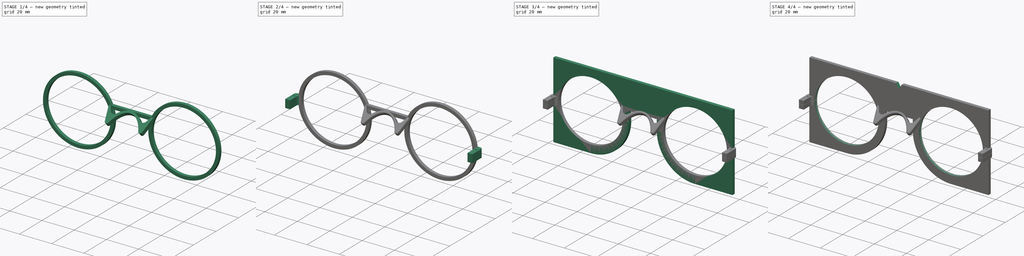
[diagram: build sequence overview — one tinted view per stage of 4, left to right]
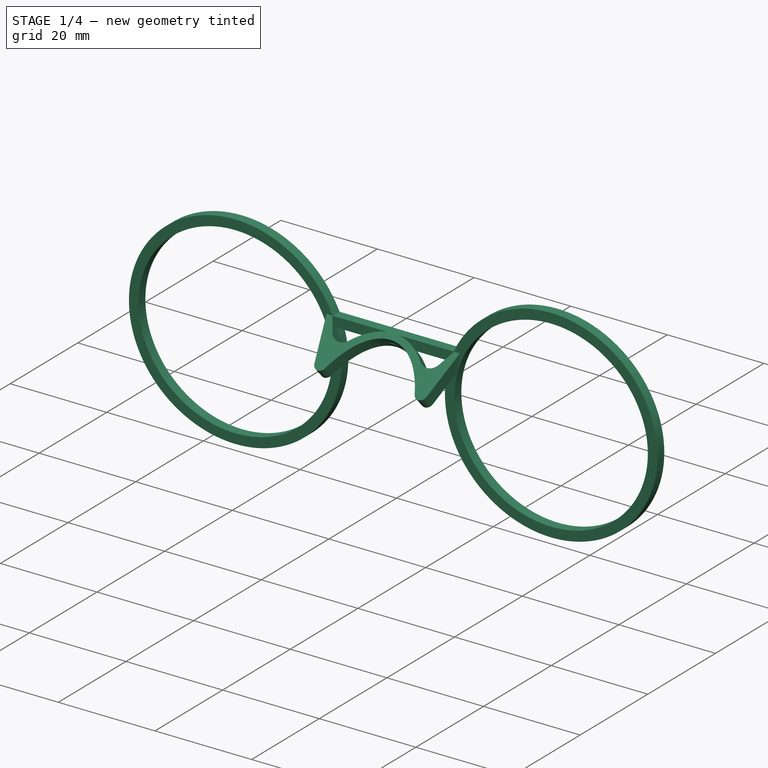
[diagram: stage 1 of 4 — iso view after this stage's code; geometry added in this stage tinted green]
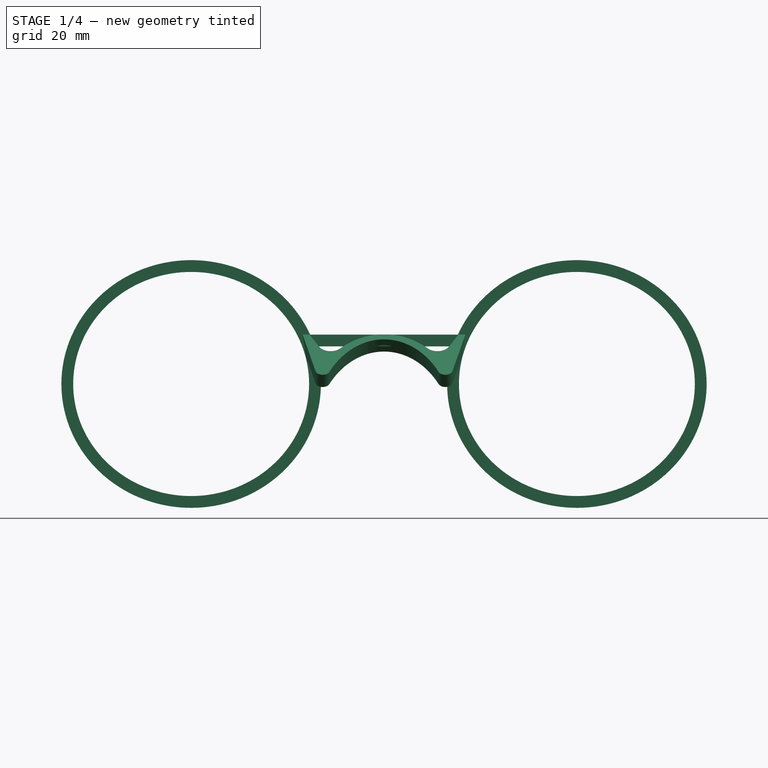
[diagram: stage 1 of 4 — front view after this stage's code; geometry added in this stage tinted green]
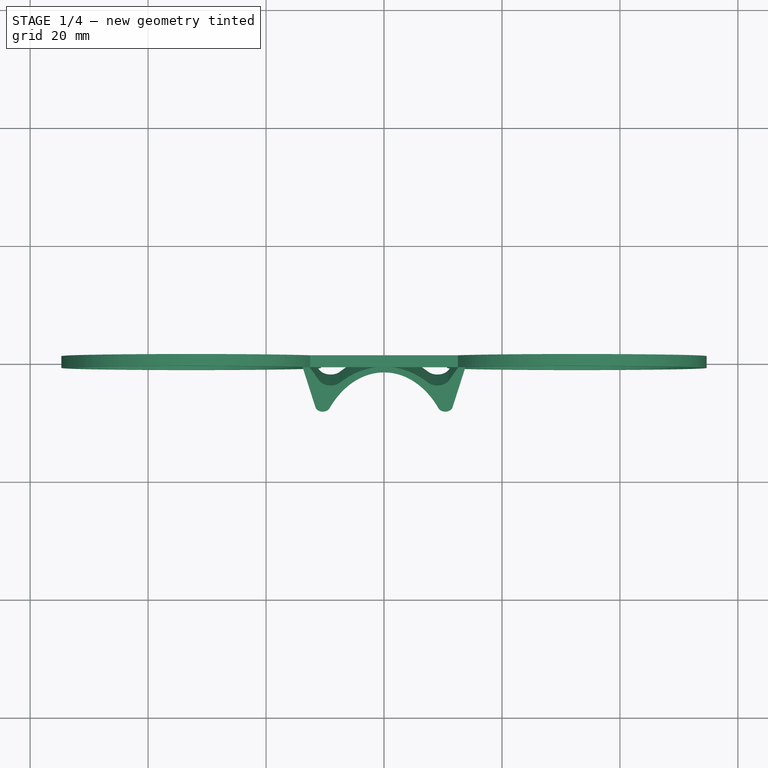
[diagram: stage 1 of 4 — top view after this stage's code; geometry added in this stage tinted green]
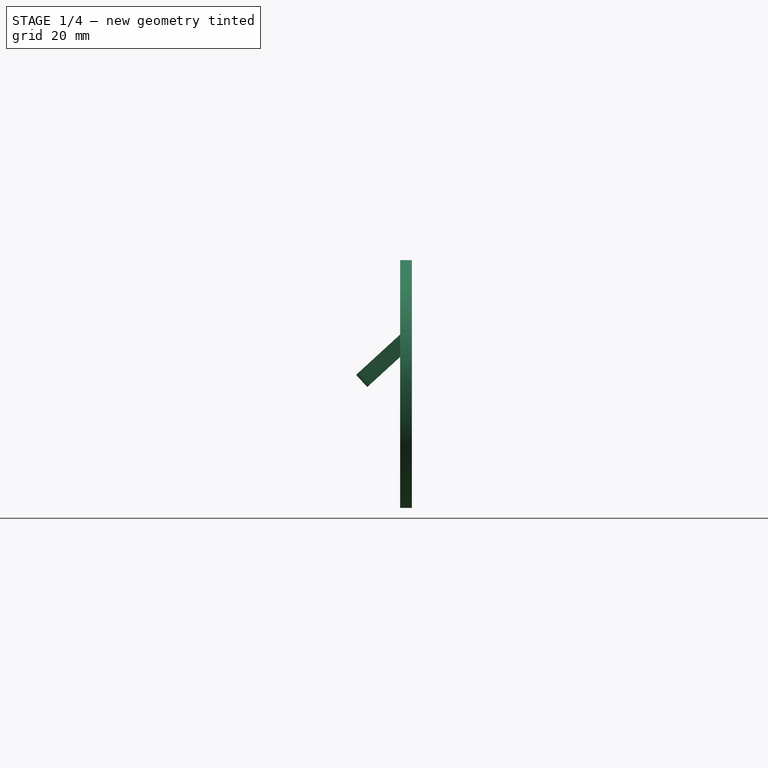
[diagram: stage 1 of 4 — right view after this stage's code; geometry added in this stage tinted green]
FCSTD DOCUMENT  (FreeCAD 1.1R39029 (Git))
Label: template_for_lens_edging_machine
License: All rights reserved
LicenseURL: http://en.wikipedia.org/wiki/All_rights_reserved
objects: Sketcher::SketchObject×14, PartDesign::Pad×5, PartDesign::Pocket×4, PartDesign::Plane×3, PartDesign::SubtractivePipe×2, PartDesign::Fillet×1, PartDesign::Body×1
note: 68 computed .brp shape members not serialized (recipe doc carries the construction recipe); baked Part::Feature solids carry a one-line shape summary decoded from their .brp

FEATURE [Sketcher::SketchObject] Sketch
  ArcFitTolerance = 1e-06
  AttachmentSupport = -> [XZ_Plane]
  FullyConstrained = true
  MakeInternals = false
  MapMode = 5
  Placement = pos=(0,0,0) rot=(1,0,0;1.5708rad)
  sketch-geometry (22):
    g0: Ellipse CenterX=-32.7 CenterY=0 CenterZ=0 NormalX=0 NormalY=0 NormalZ=1 MajorRadius=20 MinorRadius=19 AngleXU=-2.2e-15
    g1: LineSegment [constr] StartX=-12.7 StartY=0 StartZ=0 EndX=-52.7 EndY=0 EndZ=0
    g2: LineSegment [constr] StartX=-32.7 StartY=19 StartZ=0 EndX=-32.7 EndY=-19 EndZ=0
    g3: GeomPoint [constr] X=-26.455 Y=-1.37e-14 Z=0
    g4: GeomPoint [constr] X=-38.945 Y=1.39e-14 Z=0
    g5: Ellipse CenterX=32.7 CenterY=0 CenterZ=0 NormalX=0 NormalY=0 NormalZ=1 MajorRadius=20 MinorRadius=19 AngleXU=0
    g6: LineSegment [constr] StartX=52.7 StartY=0 StartZ=0 EndX=12.7 EndY=0 EndZ=0
    g7: LineSegment [constr] StartX=32.7 StartY=19 StartZ=0 EndX=32.7 EndY=-19 EndZ=0
    g8: GeomPoint [constr] X=38.945 Y=0 Z=0
    g9: GeomPoint [constr] X=26.455 Y=0 Z=0
    g10: ArcOfEllipse CenterX=-32.7 CenterY=0 CenterZ=0 NormalX=0 NormalY=0 NormalZ=1 MajorRadius=22 MinorRadius=21 AngleXU=-4.6e-15 StartAngle=0.410218 EndAngle=6.59162
    g11: LineSegment [constr] StartX=-10.7 StartY=0 StartZ=0 EndX=-54.7 EndY=0 EndZ=0
    g12: LineSegment [constr] StartX=-32.7 StartY=21 StartZ=0 EndX=-32.7 EndY=-21 EndZ=0
    g13: GeomPoint [constr] X=-26.1426 Y=-3.02e-14 Z=0
    g14: GeomPoint [constr] X=-39.2574 Y=3e-14 Z=0
    g15: ArcOfEllipse CenterX=32.7 CenterY=0 CenterZ=0 NormalX=0 NormalY=0 NormalZ=1 MajorRadius=22 MinorRadius=21 AngleXU=0 StartAngle=2.83315 EndAngle=9.01456
    g16: LineSegment [constr] StartX=54.7 StartY=0 StartZ=0 EndX=10.7 EndY=0 EndZ=0
    g17: LineSegment [constr] StartX=32.7 StartY=21 StartZ=0 EndX=32.7 EndY=-21 EndZ=0
    g18: GeomPoint [constr] X=39.2574 Y=0 Z=0
    g19: GeomPoint [constr] X=26.1426 Y=-3e-16 Z=0
    g20: LineSegment StartX=-11.7382 StartY=6.375 StartZ=0 EndX=11.7382 EndY=6.375 EndZ=0
    g21: LineSegment StartX=-12.5253 StartY=8.375 StartZ=0 EndX=12.5253 EndY=8.375 EndZ=0
  constraints (29):
    c: InternalAlignment(g1-g4 -> g0) x4
    c: PointOnObject(g0,g-1)
    c: Horizontal(g1)
    c: DistanceX(g1,g1) = 40
    c: DistanceY(g2,g2) = 38
    c: InternalAlignment(g6-g9 -> g5) x4
    c: Horizontal(g6)
    c: Equal(g1,g6)
    c: Equal(g7,g2)
    c: Symmetric(g5,g0,g-2)
    c: DistanceX(g0,g5) = 65.4
    c: InternalAlignment(g11-g14 -> g10) x4
    c: Coincident(g10,g0)
    c: Horizontal(g11)
    c: DistanceX(g1,g11) = 2
    c: DistanceY(g12,g2) = 2
    c: InternalAlignment(g16-g19 -> g15) x4
    c: Symmetric(g0,g15,g-2)
    c: Horizontal(g16)
    c: Equal(g16,g11)
    c: Equal(g17,g12)
    c: Horizontal(g10,g15)
    c: Horizontal(g15,g10)
    c: Coincident(g20,g10)
    c: Coincident(g20,g15)
    c: Coincident(g21,g10)
    c: Coincident(g21,g15)
    c: Distance(g20,g21) = 2
    c: Distance(g-1,g20) = 6.375
FEATURE [PartDesign::Pad] Pad  label="Lenses holder"
  Direction = (0,-1,2e-16)
  Length = 2
  Length2 = 10
  Midplane = true
  Placement = pos=(0,0,0) rot=(1,0,0;1.5708rad)
  Profile = -> Sketch
  ReferenceAxis = -> Sketch [N_Axis]
  Suppressed = false
  Type = 0
FEATURE [Sketcher::SketchObject] Sketch001  label="Nose bridge profile #1"
  ArcFitTolerance = 1e-06
  AttachmentSupport = -> [YZ_Plane]
  FullyConstrained = true
  MakeInternals = false
  MapMode = 5
  Placement = pos=(0,0,0) rot=(0.57735,0.57735,0.57735;2.0944rad)
  sketch-geometry (1):
    g0: LineSegment StartX=-6 StartY=0 StartZ=0 EndX=0 EndY=5.5 EndZ=0
  constraints (4):
    c: PointOnObject(g0,g-1)
    c: Distance(g0,g-1) = 5.5
    c: PointOnObject(g0,g-2)
    c: DistanceX(g0,g-1) = 6
FEATURE [Sketcher::SketchObject] Sketch002  label="Nose bridge profile #2"
  ArcFitTolerance = 1e-06
  AttachmentSupport = -> [XY_Plane]
  ExternalGeometry = -> [Sketch001]
  FullyConstrained = true
  MakeInternals = false
  MapMode = 5
  sketch-geometry (1):
    g0: LineSegment StartX=-9.25 StartY=-6 StartZ=0 EndX=9.25 EndY=-6 EndZ=0
  constraints (3):
    c: Symmetric(g0,g0,g-2)
    c: PointOnObject(g-3,g0)
    c: DistanceX(g0,g0) = 18.5
FEATURE [PartDesign::Plane] DatumPlane  label="Nose bridge plane"
  AttachmentSupport = -> [Sketch001,Sketch002]
  Length = 133.458
  MapMode = 13
  Placement = pos=(0,-4,1.83333) rot=(1,0,0;0.741947rad)
  ResizeMode = 0
  Width = 88.702
FEATURE [Sketcher::SketchObject] Sketch003
  ArcFitTolerance = 1e-06
  AttachmentSupport = -> [DatumPlane]
  ExternalGeometry = -> [Sketch001,Sketch002,Pad]
  FullyConstrained = true
  MakeInternals = false
  MapMode = 5
  Placement = pos=(0,-4,1.83333) rot=(1,0,0;0.741947rad)
  sketch-geometry (21):
    g0: ArcOfEllipse CenterX=0 CenterY=-15.7131 CenterZ=0 NormalX=0 NormalY=0 NormalZ=1 MajorRadius=21.1394 MinorRadius=11.7303 AngleXU=1.5708 StartAngle=5.37473 EndAngle=7.19164
    g1: LineSegment [constr] StartX=0 StartY=5.42627 StartZ=0 EndX=0 EndY=-36.8525 EndZ=0
    g2: LineSegment [constr] StartX=-11.7303 StartY=-15.7131 StartZ=0 EndX=11.7303 EndY=-15.7131 EndZ=0
    g3: GeomPoint [constr] X=2e-15 Y=1.87305 Z=0
    g4: GeomPoint [constr] X=0 Y=-33.2993 Z=0
    g5: ArcOfEllipse CenterX=0 CenterY=-15.7131 CenterZ=0 NormalX=0 NormalY=0 NormalZ=1 MajorRadius=22.4394 MinorRadius=13.7303 AngleXU=1.5708 StartAngle=5.71213 EndAngle=6.85424
    g6: LineSegment [constr] StartX=-5e-16 StartY=6.72627 StartZ=0 EndX=5e-16 EndY=-38.1525 EndZ=0
    g7: LineSegment [constr] StartX=-13.7303 StartY=-15.7131 StartZ=0 EndX=13.7303 EndY=-15.7131 EndZ=0
    g8: GeomPoint [constr] X=2e-15 Y=2.03525 Z=0
    g9: GeomPoint [constr] X=4e-16 Y=-33.4615 Z=0
    g10: ArcOfCircle CenterX=-10.3972 CenterY=-2.21669 CenterZ=0 NormalX=0 NormalY=0 NormalZ=1 AngleXU=0 Radius=1.25 StartAngle=3.37719 EndAngle=5.87477
    g11: LineSegment StartX=-13.82 StartY=6.68686 StartZ=0 EndX=-11.6127 EndY=-2.50847 EndZ=0
    g12: GeomPoint [constr] X=-9.25 Y=-2.71314 Z=0
    g13: LineSegment StartX=11.6127 StartY=-2.50847 StartZ=0 EndX=13.82 EndY=6.68686 EndZ=0
    g14: ArcOfCircle CenterX=10.3972 CenterY=-2.21669 CenterZ=0 NormalX=0 NormalY=0 NormalZ=1 AngleXU=0 Radius=1.25 StartAngle=3.55001 EndAngle=6.04759
    g15: ArcOfCircle CenterX=-9.05082 CenterY=4.71757 CenterZ=0 NormalX=0 NormalY=0 NormalZ=1 AngleXU=0 Radius=2.25 StartAngle=3.63126 EndAngle=5.52216
    g16: LineSegment StartX=-11.0364 StartY=3.65931 StartZ=0 EndX=-12.65 EndY=6.68686 EndZ=0
    g17: ArcOfCircle CenterX=9.05082 CenterY=4.71757 CenterZ=0 NormalX=0 NormalY=0 NormalZ=1 AngleXU=0 Radius=2.25 StartAngle=3.90262 EndAngle=5.79351
    g18: LineSegment StartX=11.0364 StartY=3.65931 StartZ=0 EndX=12.65 EndY=6.68686 EndZ=0
    g19: LineSegment StartX=-13.82 StartY=6.68686 StartZ=0 EndX=-12.65 EndY=6.68686 EndZ=0
    g20: LineSegment StartX=12.65 StartY=6.68686 StartZ=0 EndX=13.82 EndY=6.68686 EndZ=0
  constraints (39):
    c: InternalAlignment(g1-g4 -> g0) x4
    c: PointOnObject(g0,g-2)
    c: Coincident(g-3,g1)
    c: PointOnObject(g-4,g0)
    c: Distance(g0,g-4) = 13
    c: InternalAlignment(g6-g9 -> g5) x4
    c: Coincident(g5,g0)
    c: DistanceY(g1,g6) = 1.3
    c: Distance(g2,g7) = 2
    c: Horizontal(g7)
    c: Tangent(g10,g11) = -1.5708
    c: Coincident(g-4,g10)
    c: PointOnObject(g12,g0)
    c: PointOnObject(g12,g10)
    c: Tangent(g0,g10,g12) = 1.5708
    c: Symmetric(g10,g13,g-2)
    c: Coincident(g-4,g14)
    c: Tangent(g13,g14) = -1.5708
    c: PointOnObject(g0,g-4)
    c: PointOnObject(g0,g-4)
    c: Radius(g10) = 1.25
    c: Horizontal(g5,g5)
    c: Coincident(g15,g5)
    c: Tangent(g16,g15) = 1.5708
    c: Symmetric(g15,g17,g-2)
    c: Tangent(g17,g5) = 1.5708
    c: Tangent(g18,g17) = -1.5708
    c: Radius(g15) = 2.25
    c: Distance(g15,g11) = 2
    c: Horizontal(g19)
    c: Distance(g19,g-4) = 9.4
    c: DistanceX(g19,g-1) = 13.82
    c: Distance(g19,g-2) = 12.65
    c: Coincident(g11,g19)
    c: Coincident(g16,g19)
    c: Symmetric(g11,g13,g-2)
    c: Symmetric(g16,g18,g-2)
    c: Coincident(g20,g18)
    c: Coincident(g20,g13)
FEATURE [PartDesign::Pad] Pad001  label="Nose bridge #1"
  BaseFeature = -> Pad
  Direction = (0,-0.675725,0.737154)
  Length = 2.8
  Length2 = 10
  Placement = pos=(0,0,0) rot=(1,0,0;1.5708rad)
  Profile = -> Sketch003
  ReferenceAxis = -> Sketch003 [N_Axis]
  Refine = true
  Suppressed = false
  Type = 0
FEATURE [Sketcher::SketchObject] Sketch010
  ArcFitTolerance = 1e-06
  AttachmentSupport = -> [Pad001]
  ExternalGeometry = -> [Pad001]
  FullyConstrained = true
  MakeInternals = false
  MapMode = 5
  Placement = pos=(0,1.9e-15,8.375) rot=(0,0,1;3.14159rad)
  sketch-geometry (4):
    g0: LineSegment StartX=-12.5253 StartY=1 StartZ=0 EndX=-12.5253 EndY=-1 EndZ=0
    g1: LineSegment StartX=-12.5253 StartY=-1 StartZ=0 EndX=12.5253 EndY=-1 EndZ=0
    g2: LineSegment StartX=12.5253 StartY=-1 StartZ=0 EndX=12.5253 EndY=1 EndZ=0
    g3: LineSegment StartX=12.5253 StartY=1 StartZ=0 EndX=-12.5253 EndY=1 EndZ=0
  constraints (10):
    c: Coincident(g0,g1)
    c: Coincident(g1,g2)
    c: Coincident(g2,g3)
    c: Coincident(g3,g0)
    c: Vertical(g0)
    c: Vertical(g2)
    c: Horizontal(g1)
    c: Horizontal(g3)
    c: Coincident(g0,g-3)
    c: Coincident(g1,g-4)
FEATURE [PartDesign::Pocket] Pocket002  label="Nose bridge #2"
  BaseFeature = -> Pad001
  Direction = (0,0,-1)
  Length = 5
  Length2 = 5
  Placement = pos=(0,0,0) rot=(1,0,0;1.5708rad)
  Profile = -> Sketch010
  ReferenceAxis = -> Sketch010 [N_Axis]
  Refine = true
  Reversed = true
  Suppressed = false
  Type = 1
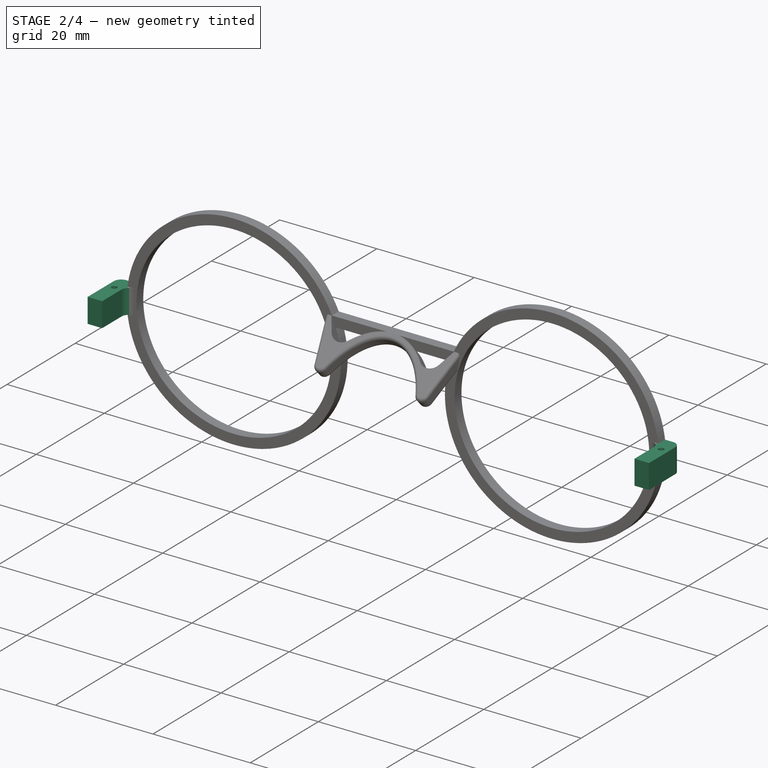
[diagram: stage 2 of 4 — iso view after this stage's code; geometry added in this stage tinted green]
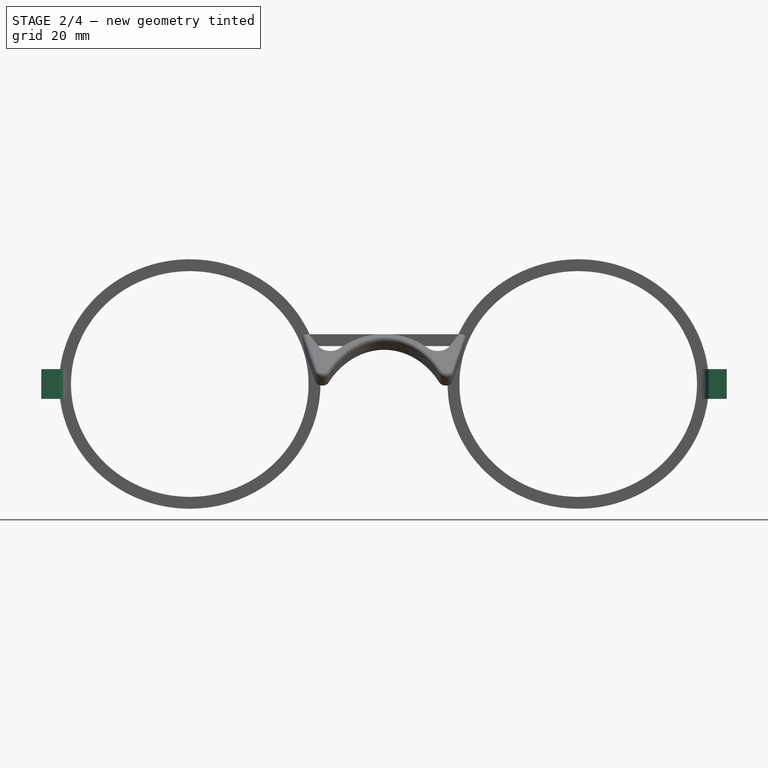
[diagram: stage 2 of 4 — front view after this stage's code; geometry added in this stage tinted green]
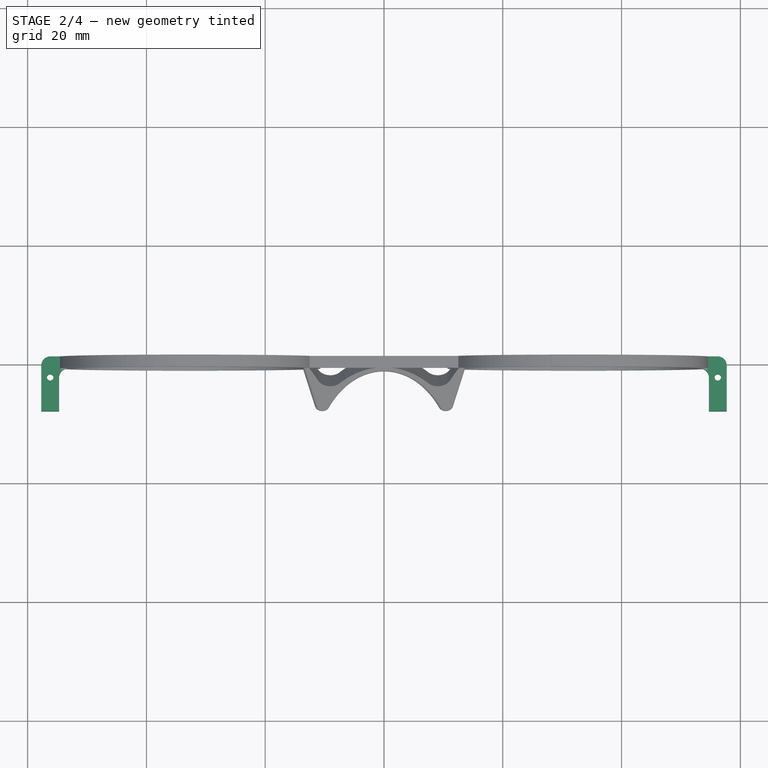
[diagram: stage 2 of 4 — top view after this stage's code; geometry added in this stage tinted green]
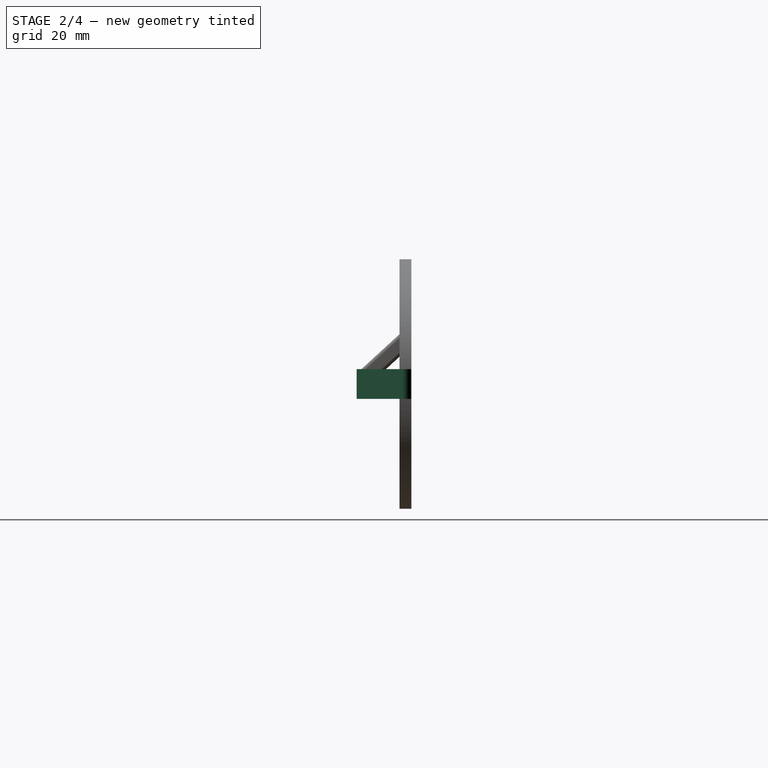
[diagram: stage 2 of 4 — right view after this stage's code; geometry added in this stage tinted green]
FEATURE [Sketcher::SketchObject] Sketch011
  ArcFitTolerance = 1e-06
  AttachmentSupport = -> [DatumPlane]
  ExternalGeometry = -> [Pocket002]
  FullyConstrained = true
  MakeInternals = false
  MapMode = 5
  Placement = pos=(0,-4,1.83333) rot=(1,0,0;0.741947rad)
  sketch-geometry (5):
    g0: Ellipse CenterX=0 CenterY=-15.7131 CenterZ=0 NormalX=0 NormalY=0 NormalZ=1 MajorRadius=21.1394 MinorRadius=11.7303 AngleXU=1.5708
    g1: LineSegment [constr] StartX=0 StartY=5.42627 StartZ=0 EndX=0 EndY=-36.8525 EndZ=0
    g2: LineSegment [constr] StartX=-11.7303 StartY=-15.7131 StartZ=0 EndX=11.7303 EndY=-15.7131 EndZ=0
    g3: GeomPoint [constr] X=2e-15 Y=1.87305 Z=0
    g4: GeomPoint [constr] X=4e-16 Y=-33.2993 Z=0
  constraints (4):
    c: InternalAlignment(g1-g4 -> g0) x4
    c: Coincident(g0,g-3)
    c: Equal(g-3,g0)
    c: Vertical(g1)
FEATURE [PartDesign::Pocket] Pocket003  label="Nose bridge #3"
  BaseFeature = -> Pocket002
  Direction = (0,0.675725,-0.737154)
  Length = 5
  Length2 = 5
  Midplane = true
  Placement = pos=(0,0,0) rot=(1,0,0;1.5708rad)
  Profile = -> Sketch011
  ReferenceAxis = -> Sketch011 [N_Axis]
  Refine = true
  Suppressed = false
  Type = 1
FEATURE [PartDesign::Fillet] Fillet  label="Nose bridge #4"
  Base = -> Pocket003 [Edge55,Edge54,Edge40]
  BaseFeature = -> Pocket003
  Placement = pos=(0,0,0) rot=(1,0,0;1.5708rad)
  Radius = 0.6
  Refine = true
  SupportTransform = false
  Suppressed = false
  UseAllEdges = false
FEATURE [Sketcher::SketchObject] Sketch008
  ArcFitTolerance = 1e-06
  AttachmentSupport = -> [XY_Plane]
  ExternalGeometry = -> [Fillet]
  FullyConstrained = true
  MakeInternals = false
  MapMode = 5
  sketch-geometry (22):
    g0: Circle [constr] CenterX=-56.2 CenterY=-2.5 CenterZ=0 NormalX=0 NormalY=0 NormalZ=1 AngleXU=0 Radius=1.5
    g1: LineSegment [constr] StartX=-54.7 StartY=1 StartZ=0 EndX=-54.7 EndY=0 EndZ=0
    g2: ArcOfCircle CenterX=-53.2 CenterY=-2.5 CenterZ=0 NormalX=0 NormalY=0 NormalZ=1 AngleXU=0 Radius=1.5 StartAngle=1.5708 EndAngle=3.14159
    g3: LineSegment StartX=-53.2 StartY=-1 StartZ=0 EndX=-53.2 EndY=1 EndZ=0
    g4: LineSegment StartX=-56.2 StartY=1 StartZ=0 EndX=-53.2 EndY=1 EndZ=0
    g5: ArcOfCircle CenterX=-56.2 CenterY=-0.5 CenterZ=0 NormalX=0 NormalY=0 NormalZ=1 AngleXU=0 Radius=1.5 StartAngle=1.5708 EndAngle=3.14159
    g6: LineSegment StartX=-57.7 StartY=-0.5 StartZ=0 EndX=-57.7 EndY=-8.2 EndZ=0
    g7: LineSegment [constr] StartX=-54.7 StartY=0 StartZ=0 EndX=-54.7 EndY=-1 EndZ=0
    g8: LineSegment StartX=-54.7 StartY=-2.5 StartZ=0 EndX=-54.7 EndY=-8.2 EndZ=0
    g9: LineSegment StartX=-57.7 StartY=-8.2 StartZ=0 EndX=-54.7 EndY=-8.2 EndZ=0
    g10: Circle [constr] CenterX=56.2 CenterY=-2.5 CenterZ=0 NormalX=0 NormalY=0 NormalZ=1 AngleXU=0 Radius=1.5
    g11: LineSegment [constr] StartX=54.7 StartY=1 StartZ=0 EndX=54.7 EndY=0 EndZ=0
    g12: ArcOfCircle CenterX=53.2 CenterY=-2.5 CenterZ=0 NormalX=0 NormalY=0 NormalZ=1 AngleXU=0 Radius=1.5 StartAngle=0 EndAngle=1.5708
    g13: LineSegment StartX=53.2 StartY=-1 StartZ=0 EndX=53.2 EndY=1 EndZ=0
    g14: LineSegment StartX=56.2 StartY=1 StartZ=0 EndX=53.2 EndY=1 EndZ=0
    g15: ArcOfCircle CenterX=56.2 CenterY=-0.5 CenterZ=0 NormalX=0 NormalY=0 NormalZ=1 AngleXU=0 Radius=1.5 StartAngle=0 EndAngle=1.5708
    g16: LineSegment StartX=57.7 StartY=-0.5 StartZ=0 EndX=57.7 EndY=-8.2 EndZ=0
    g17: LineSegment [constr] StartX=54.7 StartY=0 StartZ=0 EndX=54.7 EndY=-1 EndZ=0
    g18: LineSegment StartX=54.7 StartY=-2.5 StartZ=0 EndX=54.7 EndY=-8.2 EndZ=0
    g19: LineSegment StartX=57.7 StartY=-8.2 StartZ=0 EndX=54.7 EndY=-8.2 EndZ=0
    g20: Circle CenterX=-56.2 CenterY=-2.5 CenterZ=0 NormalX=0 NormalY=0 NormalZ=1 AngleXU=0 Radius=0.55
    g21: Circle CenterX=56.2 CenterY=-2.5 CenterZ=0 NormalX=0 NormalY=0 NormalZ=1 AngleXU=0 Radius=0.55
  constraints (58):
    c: Diameter(g0) = 3
    c: Tangent(g0,g1)
    c: Vertical(g2,g2)
    c: Vertical(g3)
    c: Coincident(g4,g3)
    c: Horizontal(g4)
    c: PointOnObject(g1,g4)
    c: Horizontal(g3,g7)
    c: Coincident(g3,g2)
    c: Coincident(g7,g-3)
    c: Vertical(g1)
    c: Tangent(g0,g-3)
    c: PointOnObject(g2,g0)
    c: Coincident(g5,g4)
    c: Equal(g2,g5)
    c: Vertical(g5,g4)
    c: Coincident(g6,g5)
    c: Vertical(g6)
    c: Horizontal(g5,g5)
    c: Coincident(g1,g7)
    c: PointOnObject(g1,g-1)
    c: Equal(g1,g7)
    c: Vertical(g7)
    c: Coincident(g9,g6)
    c: Coincident(g9,g8)
    c: Horizontal(g9)
    c: Coincident(g2,g8)
    c: Vertical(g8)
    c: Distance(g9,g-1) = 8.2
    c: Equal(g0,g10)
    c: Symmetric(g0,g10,g-2)
    c: Symmetric(g1,g11,g-2)
    c: Symmetric(g1,g11,g-2)
    c: Equal(g2,g12)
    c: Symmetric(g2,g12,g-2)
    c: Symmetric(g2,g12,g-2)
    c: Symmetric(g3,g13,g-2)
    c: Symmetric(g3,g13,g-2)
    c: Symmetric(g4,g14,g-2)
    c: Symmetric(g4,g14,g-2)
    c: Equal(g5,g15)
    c: Symmetric(g5,g15,g-2)
    c: Symmetric(g5,g15,g-2)
    c: Symmetric(g6,g16,g-2)
    c: Symmetric(g6,g16,g-2)
    c: Symmetric(g7,g17,g-2)
    c: Symmetric(g7,g17,g-2)
    c: Symmetric(g8,g18,g-2)
    c: Symmetric(g8,g18,g-2)
    c: Symmetric(g9,g19,g-2)
    c: Symmetric(g9,g19,g-2)
    c: Horizontal(g2,g0)
    c: Horizontal(g2,g0)
    c: Vertical(g0,g5)
    c: Coincident(g20,g0)
    c: Diameter(g20) = 1.1
    c: Equal(g20,g21)
    c: Symmetric(g20,g21,g-2)
FEATURE [PartDesign::Pad] Pad002  label="Fake hinges"
  BaseFeature = -> Fillet
  Direction = (0,0,1)
  Length = 5
  Length2 = 10
  Midplane = true
  Placement = pos=(0,0,0) rot=(1,0,0;1.5708rad)
  Profile = -> Sketch008
  ReferenceAxis = -> Sketch008 [N_Axis]
  Refine = true
  Suppressed = false
  Type = 0
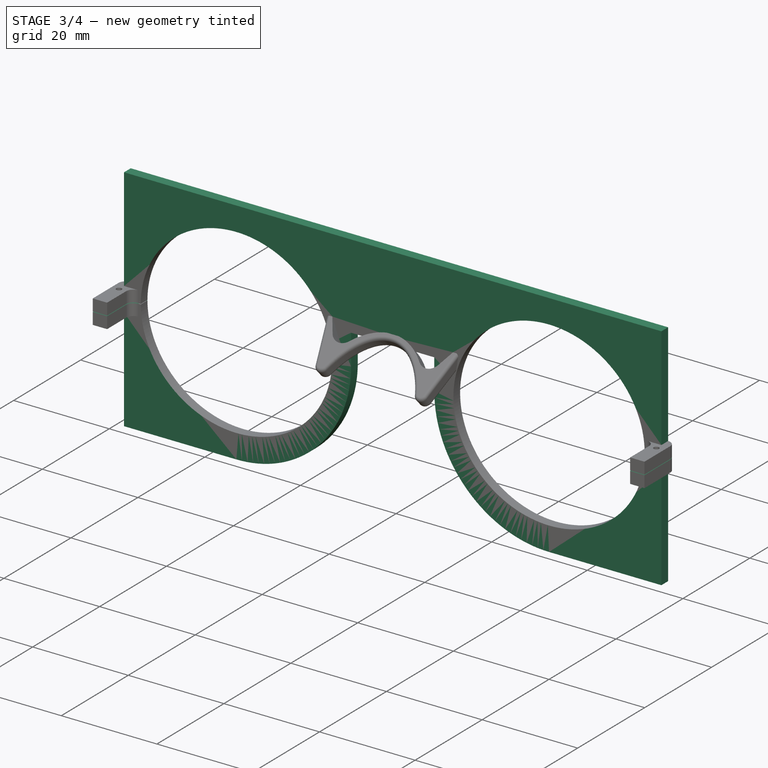
[diagram: stage 3 of 4 — iso view after this stage's code; geometry added in this stage tinted green]
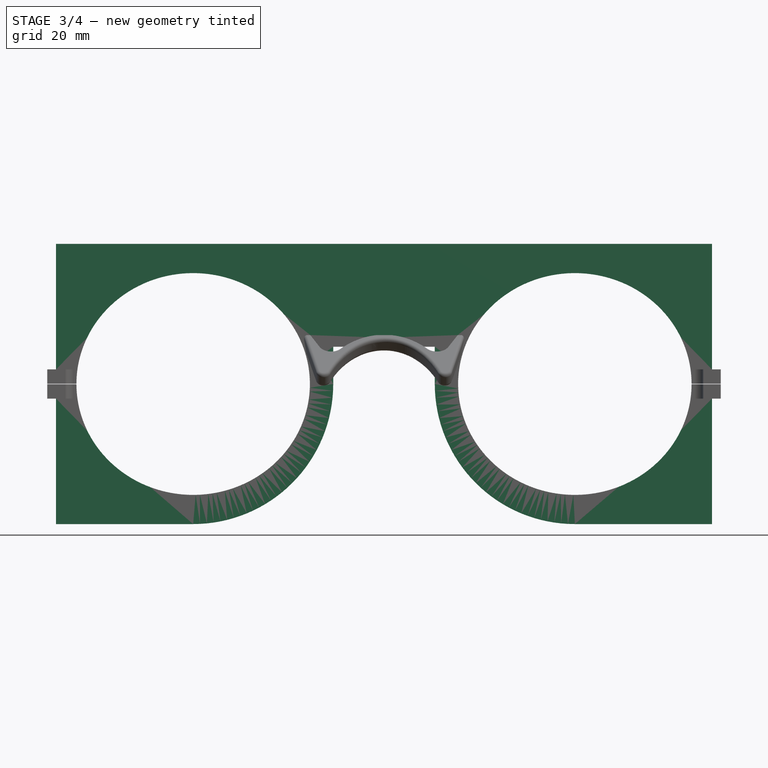
[diagram: stage 3 of 4 — front view after this stage's code; geometry added in this stage tinted green]
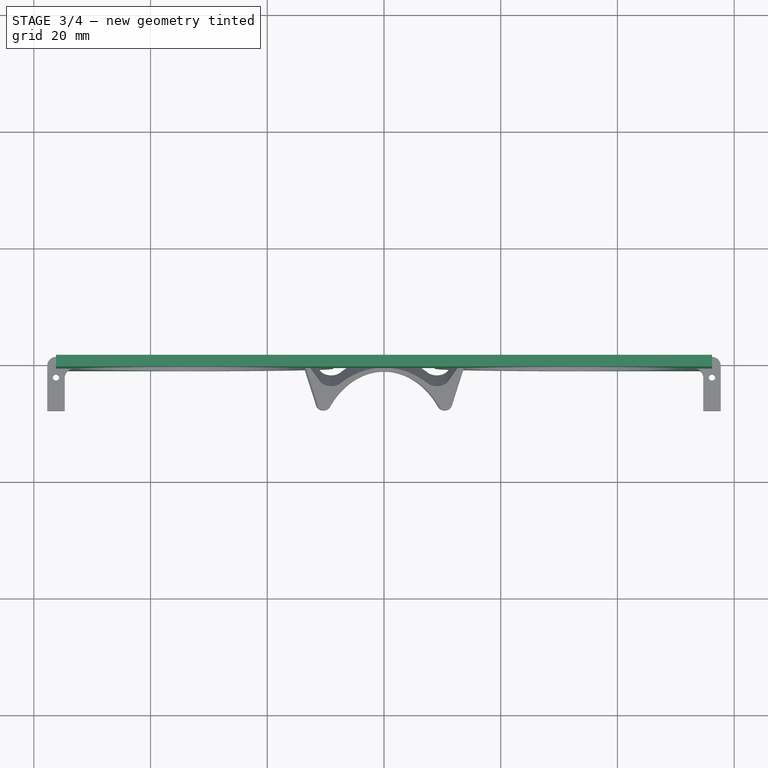
[diagram: stage 3 of 4 — top view after this stage's code; geometry added in this stage tinted green]
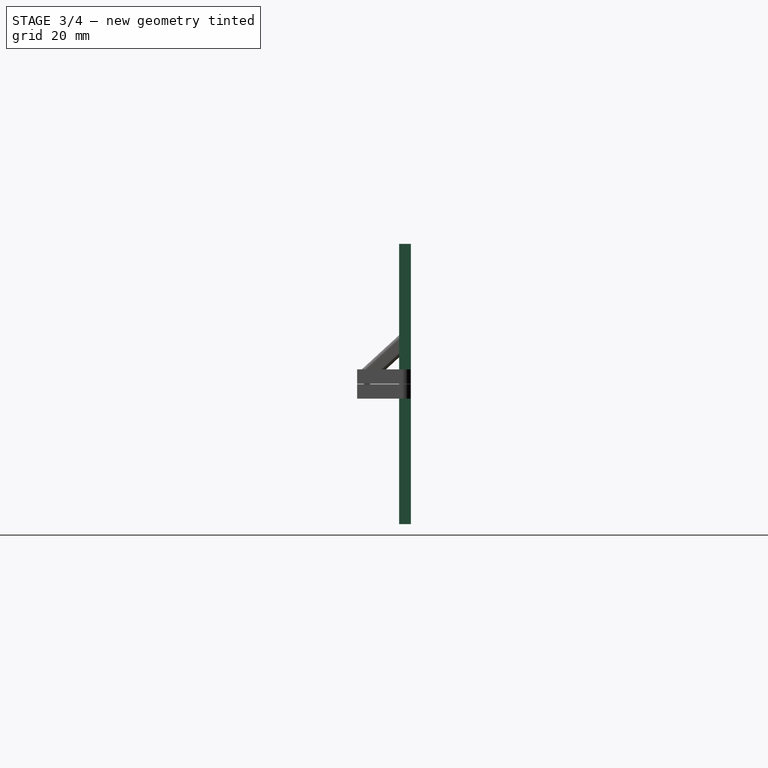
[diagram: stage 3 of 4 — right view after this stage's code; geometry added in this stage tinted green]
FEATURE [Sketcher::SketchObject] Sketch012
  ArcFitTolerance = 1e-06
  AttachmentSupport = -> [XY_Plane]
  ExternalGeometry = -> [Sketch008]
  FullyConstrained = true
  MakeInternals = false
  MapMode = 5
  sketch-geometry (8):
    g0: LineSegment StartX=-53.2 StartY=1 StartZ=0 EndX=-56.2 EndY=1 EndZ=0
    g1: LineSegment StartX=-56.2 StartY=1 StartZ=0 EndX=-56.2 EndY=-1 EndZ=0
    g2: LineSegment StartX=-56.2 StartY=-1 StartZ=0 EndX=-53.2 EndY=-1 EndZ=0
    g3: LineSegment StartX=-53.2 StartY=-1 StartZ=0 EndX=-53.2 EndY=1 EndZ=0
    g4: LineSegment StartX=53.2 StartY=-1 StartZ=0 EndX=53.2 EndY=1 EndZ=0
    g5: LineSegment StartX=53.2 StartY=1 StartZ=0 EndX=56.2 EndY=1 EndZ=0
    g6: LineSegment StartX=56.2 StartY=1 StartZ=0 EndX=56.2 EndY=-1 EndZ=0
    g7: LineSegment StartX=56.2 StartY=-1 StartZ=0 EndX=53.2 EndY=-1 EndZ=0
  constraints (20):
    c: Coincident(g0,g1)
    c: Coincident(g1,g2)
    c: Coincident(g2,g3)
    c: Coincident(g3,g0)
    c: Horizontal(g0)
    c: Horizontal(g2)
    c: Vertical(g1)
    c: Vertical(g3)
    c: Coincident(g0,g-3)
    c: Coincident(g1,g-4)
    c: Coincident(g4,g5)
    c: Coincident(g5,g6)
    c: Coincident(g6,g7)
    c: Coincident(g7,g4)
    c: Symmetric(g6,g1,g-2)
    c: Symmetric(g4,g0,g-2)
    c: Horizontal(g5)
    c: Vertical(g6)
    c: Vertical(g4)
    c: Horizontal(g7)
FEATURE [PartDesign::Pad] Pad003  label="End pieces"
  BaseFeature = -> Pad002
  Direction = (0,0,1)
  Length = 10
  Length2 = 10
  Midplane = true
  Placement = pos=(0,0,0) rot=(1,0,0;1.5708rad)
  Profile = -> Sketch012
  ReferenceAxis = -> Sketch012 [N_Axis]
  Refine = true
  Suppressed = false
  Type = 0
FEATURE [Sketcher::SketchObject] Sketch013
  ArcFitTolerance = 1e-06
  AttachmentSupport = -> [XZ_Plane]
  ExternalGeometry = -> [Sketch]
  FullyConstrained = true
  MakeInternals = false
  MapMode = 5
  Placement = pos=(0,0,0) rot=(1,0,0;1.5708rad)
  sketch-geometry (8):
    g0: LineSegment StartX=-57.7 StartY=-0.05 StartZ=0 EndX=-57.7 EndY=0.05 EndZ=0
    g1: LineSegment StartX=-57.7 StartY=0.05 StartZ=0 EndX=-52.6999 EndY=0.05 EndZ=0
    g2: LineSegment StartX=-52.6999 StartY=0.05 StartZ=0 EndX=-52.6999 EndY=-0.05 EndZ=0
    g3: LineSegment StartX=-52.6999 StartY=-0.05 StartZ=0 EndX=-57.7 EndY=-0.05 EndZ=0
    g4: LineSegment StartX=52.6999 StartY=-0.05 StartZ=0 EndX=52.6999 EndY=0.05 EndZ=0
    g5: LineSegment StartX=52.6999 StartY=0.05 StartZ=0 EndX=57.7 EndY=0.05 EndZ=0
    g6: LineSegment StartX=57.7 StartY=0.05 StartZ=0 EndX=57.7 EndY=-0.05 EndZ=0
    g7: LineSegment StartX=57.7 StartY=-0.05 StartZ=0 EndX=52.6999 EndY=-0.05 EndZ=0
  constraints (20):
    c: Coincident(g0,g1)
    c: Coincident(g2,g3)
    c: Coincident(g3,g0)
    c: Symmetric(g0,g0,g-1)
    c: PointOnObject(g-3,g0)
    c: Symmetric(g2,g1,g-1)
    c: Coincident(g1,g2)
    c: Horizontal(g1)
    c: Coincident(g4,g5)
    c: Coincident(g5,g6)
    c: Coincident(g6,g7)
    c: Coincident(g7,g4)
    c: Symmetric(g0,g5,g-2)
    c: Symmetric(g2,g4,g-2)
    c: Vertical(g4)
    c: Vertical(g6)
    c: Horizontal(g7)
    c: Horizontal(g5)
    c: DistanceY(g0,g0) = 0.1
    c: PointOnObject(g1,g-4)
FEATURE [Sketcher::SketchObject] Sketch017
  ArcFitTolerance = 1e-06
  AttachmentSupport = -> [Pad003]
  ExternalGeometry = -> [Pad003]
  FullyConstrained = true
  MakeInternals = false
  MapMode = 5
  Placement = pos=(0,1,-2e-16) rot=(-1,0,0;1.5708rad)
  sketch-geometry (25):
    g0: LineSegment StartX=-56.2 StartY=0 StartZ=0 EndX=-56.2 EndY=-24 EndZ=0
    g1: LineSegment StartX=56.2 StartY=-24 StartZ=0 EndX=56.2 EndY=0 EndZ=0
    g2: LineSegment StartX=-56.2 StartY=-24 StartZ=0 EndX=56.2 EndY=-24 EndZ=0
    g3: LineSegment [constr] StartX=-32.7 StartY=-24 StartZ=0 EndX=-32.7 EndY=-21 EndZ=0
    g4: LineSegment StartX=-12.5253 StartY=-8.375 StartZ=0 EndX=12.5253 EndY=-8.375 EndZ=0
    g5: ArcOfEllipse CenterX=-32.7 CenterY=0 CenterZ=0 NormalX=0 NormalY=0 NormalZ=1 MajorRadius=22 MinorRadius=21 AngleXU=-3.14159 StartAngle=2.83315 EndAngle=9.01456
    g6: LineSegment [constr] StartX=-54.7 StartY=0 StartZ=0 EndX=-10.7 EndY=0 EndZ=0
    g7: LineSegment [constr] StartX=-32.7 StartY=-21 StartZ=0 EndX=-32.7 EndY=21 EndZ=0
    g8: GeomPoint [constr] X=-39.2574 Y=0 Z=0
    g9: GeomPoint [constr] X=-26.1426 Y=0 Z=0
    g10: ArcOfEllipse CenterX=32.7 CenterY=0 CenterZ=0 NormalX=0 NormalY=0 NormalZ=1 MajorRadius=22 MinorRadius=21 AngleXU=3.14159 StartAngle=0.410218 EndAngle=6.59162
    g11: LineSegment [constr] StartX=10.7 StartY=0 StartZ=0 EndX=54.7 EndY=0 EndZ=0
    g12: LineSegment [constr] StartX=32.7 StartY=-21 StartZ=0 EndX=32.7 EndY=21 EndZ=0
    g13: GeomPoint [constr] X=26.1426 Y=0 Z=0
    g14: GeomPoint [constr] X=39.2574 Y=0 Z=0
    g15: LineSegment StartX=-56.2 StartY=0 StartZ=0 EndX=-56.2 EndY=24 EndZ=0
    g16: LineSegment StartX=-32.7 StartY=24 StartZ=0 EndX=-56.2 EndY=24 EndZ=0
    g17: LineSegment StartX=56.2 StartY=0 StartZ=0 EndX=56.2 EndY=24 EndZ=0
    g18: LineSegment StartX=-8.7 StartY=-6.375 StartZ=0 EndX=-8.7 EndY=0 EndZ=0
    g19: ArcOfCircle CenterX=-32.7 CenterY=0 CenterZ=0 NormalX=0 NormalY=0 NormalZ=1 AngleXU=0 Radius=24 StartAngle=0 EndAngle=1.5708
    g20: LineSegment StartX=-11.7382 StartY=-6.375 StartZ=0 EndX=-8.7 EndY=-6.375 EndZ=0
    g21: LineSegment StartX=32.7 StartY=24 StartZ=0 EndX=56.2 EndY=24 EndZ=0
    g22: LineSegment StartX=8.7 StartY=-6.375 StartZ=0 EndX=8.7 EndY=0 EndZ=0
    g23: ArcOfCircle CenterX=32.7 CenterY=0 CenterZ=0 NormalX=0 NormalY=0 NormalZ=1 AngleXU=0 Radius=24 StartAngle=1.5708 EndAngle=3.14159
    g24: LineSegment StartX=8.7 StartY=-6.375 StartZ=0 EndX=11.7382 EndY=-6.375 EndZ=0
  constraints (59):
    c: PointOnObject(g0,g-1)
    c: Vertical(g0)
    c: Symmetric(g0,g1,g-2)
    c: Symmetric(g0,g1,g-2)
    c: PointOnObject(g-3,g0)
    c: Coincident(g2,g0)
    c: Coincident(g2,g1)
    c: PointOnObject(g3,g2)
    c: PointOnObject(g3,g-4)
    c: PointOnObject(g-4,g3)
    c: Vertical(g3)
    c: DistanceY(g3,g3) = 3
    c: Coincident(g4,g-5)
    c: PointOnObject(g6,g-4)
    c: Coincident(g4,g-5)
    c: InternalAlignment(g6-g9 -> g5) x4
    c: Coincident(g5,g-4)
    c: PointOnObject(g5,g4)
    c: PointOnObject(g7,g-4)
    c: InternalAlignment(g11-g14 -> g10) x4
    c: Symmetric(g11,g6,g-2)
    c: Horizontal(g3,g12)
    c: PointOnObject(g10,g4)
    c: Coincident(g15,g0)
    c: Vertical(g15)
    c: Horizontal(g16)
    c: Coincident(g15,g16)
    c: Horizontal(g6,g0)
    c: Horizontal(g11,g1)
    c: Equal(g11,g6)
    c: Coincident(g17,g1)
    c: Coincident(g17,g21)
    c: Vertical(g17)
    c: PointOnObject(g18,g-6)
    c: PointOnObject(g18,g-1)
    c: Vertical(g18)
    c: Coincident(g19,g5)
    c: Coincident(g19,g18)
    c: Coincident(g16,g19)
    c: Vertical(g16,g5)
    c: PointOnObject(g20,g-4)
    c: PointOnObject(g20,g-6)
    c: Horizontal(g20)
    c: Distance(g7,g16) = 3
    c: PointOnObject(g5,g20)
    c: PointOnObject(g20,g18)
    c: Horizontal(g21)
    c: PointOnObject(g21,g16)
    c: PointOnObject(g22,g-6)
    c: Vertical(g22)
    c: Horizontal(g10,g22)
    c: Coincident(g23,g10)
    c: PointOnObject(g23,g-1)
    c: PointOnObject(g23,g22)
    c: Coincident(g21,g23)
    c: Vertical(g21,g10)
    c: Coincident(g24,g22)
    c: Coincident(g24,g-6)
    c: PointOnObject(g10,g24)
FEATURE [PartDesign::Pad] Pad004  label="Reinforcement"
  BaseFeature = -> Pad003
  Direction = (0,1,0)
  Length = 10
  Length2 = 10
  Placement = pos=(0,0,0) rot=(1,0,0;1.5708rad)
  Profile = -> Sketch017
  ReferenceAxis = -> Sketch017 [N_Axis]
  Refine = true
  Suppressed = false
  Type = 3
  UpToFace = -> Pad003 [Face60]
FEATURE [PartDesign::Pocket] Pocket  label="Frame opening slits"
  BaseFeature = -> Pad004
  Direction = (0,1,-2e-16)
  Length = 5
  Length2 = 5
  Midplane = true
  Placement = pos=(0,0,0) rot=(1,0,0;1.5708rad)
  Profile = -> Sketch013
  ReferenceAxis = -> Sketch013 [N_Axis]
  Refine = true
  Suppressed = false
  Type = 1
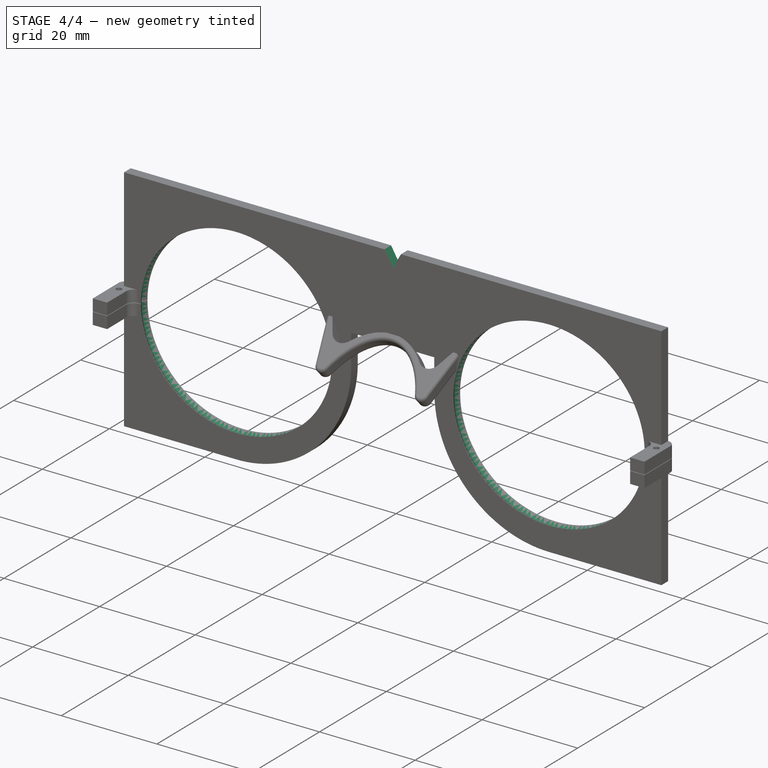
[diagram: stage 4 of 4 — iso view after this stage's code; geometry added in this stage tinted green]
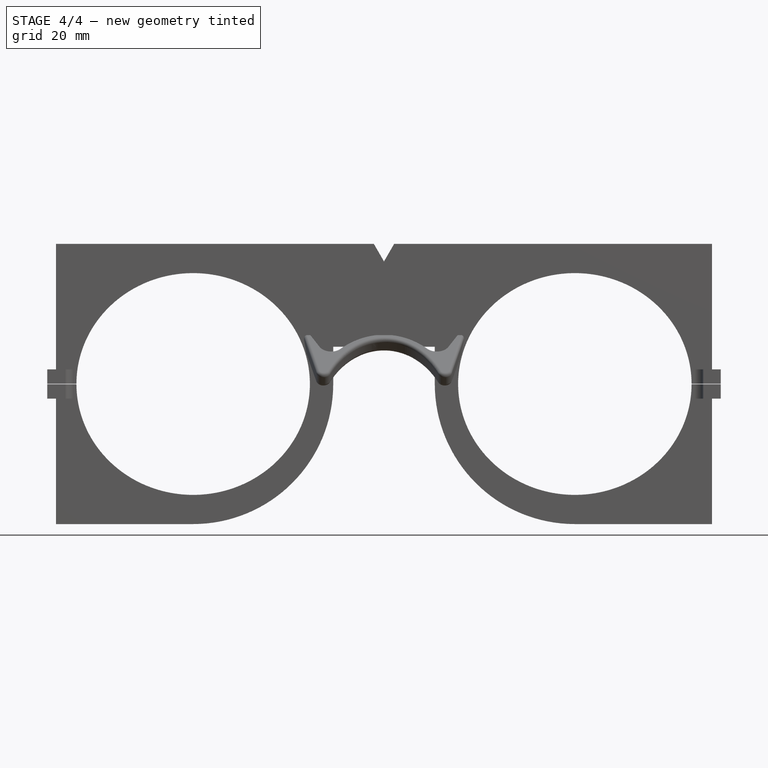
[diagram: stage 4 of 4 — front view after this stage's code; geometry added in this stage tinted green]
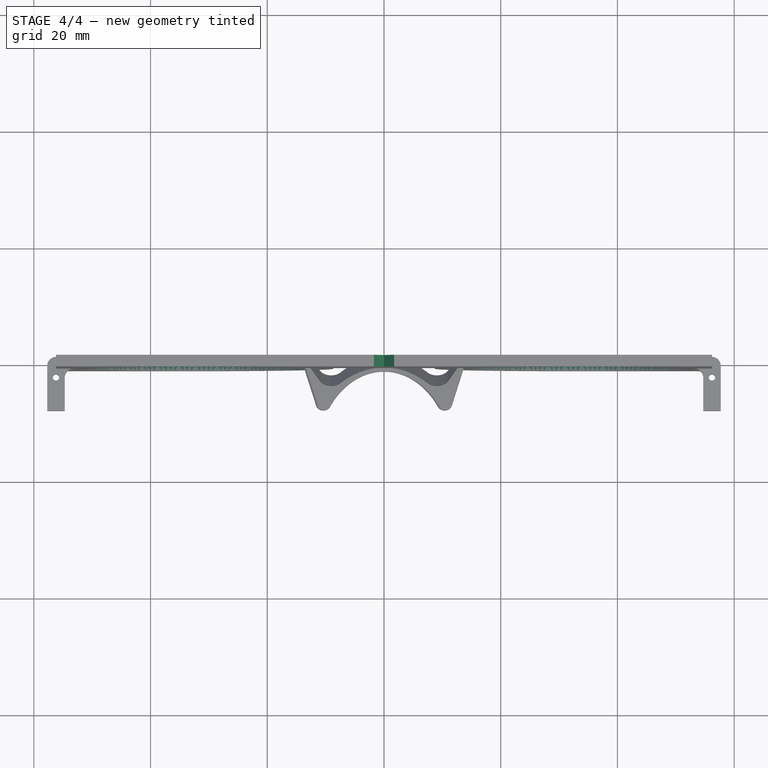
[diagram: stage 4 of 4 — top view after this stage's code; geometry added in this stage tinted green]
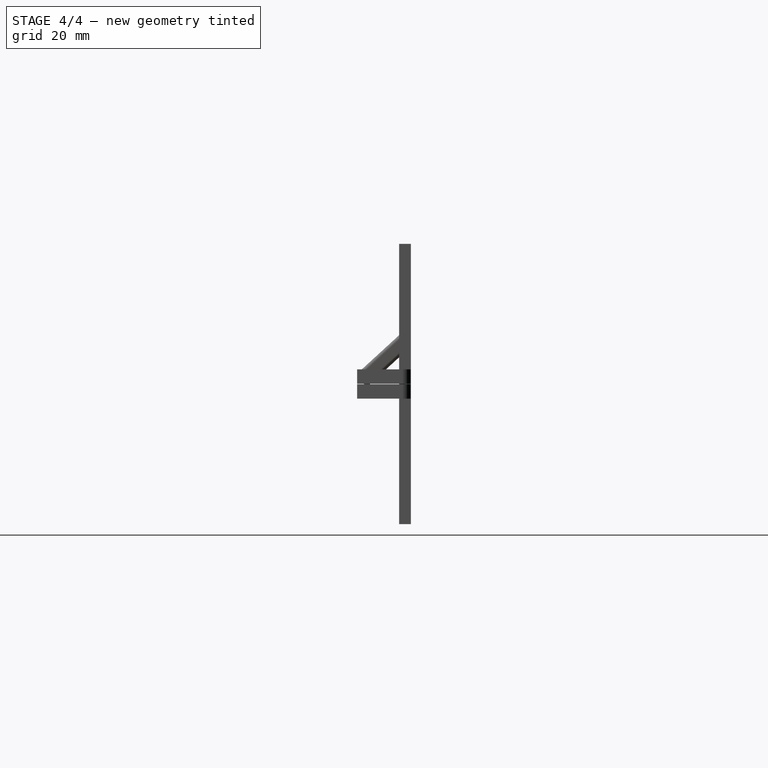
[diagram: stage 4 of 4 — right view after this stage's code; geometry added in this stage tinted green]
FEATURE [Sketcher::SketchObject] Sketch014  label="Lens grooves paths"
  ArcFitTolerance = 1e-06
  AttachmentSupport = -> [XZ_Plane]
  ExternalGeometry = -> [Sketch,Pocket]
  FullyConstrained = true
  MakeInternals = false
  MapMode = 5
  Placement = pos=(0,0,0) rot=(1,0,0;1.5708rad)
  sketch-geometry (13):
    g0: ArcOfEllipse CenterX=32.7 CenterY=0 CenterZ=0 NormalX=0 NormalY=0 NormalZ=1 MajorRadius=20 MinorRadius=19 AngleXU=2e-16 StartAngle=0 EndAngle=6.28318
    g1: LineSegment [constr] StartX=52.7 StartY=3e-15 StartZ=0 EndX=12.7 EndY=-3e-15 EndZ=0
    g2: LineSegment [constr] StartX=32.7 StartY=19 StartZ=0 EndX=32.7 EndY=-19 EndZ=0
    g3: GeomPoint [constr] X=38.945 Y=1.2e-15 Z=0
    g4: GeomPoint [constr] X=26.455 Y=-9e-16 Z=0
    g5: LineSegment [constr] StartX=52.7 StartY=4e-15 StartZ=0 EndX=52.7 EndY=-3.12482e-05 EndZ=0
    g6: LineSegment [constr] StartX=32.7 StartY=0 StartZ=0 EndX=53.2 EndY=0 EndZ=0
    g7: LineSegment [constr] StartX=32.7 StartY=0 StartZ=0 EndX=53.2 EndY=-3.20294e-05 EndZ=0
    g8: ArcOfEllipse CenterX=-32.7 CenterY=-1.56242e-05 CenterZ=0 NormalX=0 NormalY=0 NormalZ=1 MajorRadius=20 MinorRadius=19 AngleXU=-3.14159 StartAngle=8.22316e-07 EndAngle=6.28318
    g9: LineSegment [constr] StartX=-52.7 StartY=-1.56242e-05 StartZ=0 EndX=-12.7 EndY=-1.56242e-05 EndZ=0
    g10: LineSegment [constr] StartX=-32.7 StartY=19 StartZ=0 EndX=-32.7 EndY=-19 EndZ=0
    g11: GeomPoint [constr] X=-38.945 Y=-1.56242e-05 Z=0
    g12: GeomPoint [constr] X=-26.455 Y=-1.56242e-05 Z=0
  constraints (20):
    c: InternalAlignment(g1-g4 -> g0) x4
    c: Coincident(g0,g-3)
    c: Equal(g0,g-3)
    c: Vertical(g2)
    c: Vertical(g5)
    c: Coincident(g0,g5)
    c: Coincident(g0,g5)
    c: Coincident(g6,g0)
    c: Coincident(g7,g0)
    c: PointOnObject(g0,g6)
    c: PointOnObject(g0,g7)
    c: Equal(g6,g7)
    c: Distance(g0,g6) = 0.5
    c: InternalAlignment(g9-g12 -> g8) x4
    c: Vertical(g10)
    c: Symmetric(g8,g0,g-2)
    c: Symmetric(g8,g0,g-2)
    c: Equal(g9,g1)
    c: Equal(g10,g2)
    c: Horizontal(g6)
FEATURE [PartDesign::Plane] DatumPlane001  label="Right lens groove start plane"
  AttachmentSupport = -> [Sketch014]
  Length = 130.592
  MapMode = 8
  Placement = pos=(52.7,0,4e-15) rot=(1,0,0;3.14159rad)
  ResizeMode = 0
  Width = 65.1921
FEATURE [Sketcher::SketchObject] Sketch015  label="Right lens groove profile"
  ArcFitTolerance = 1e-06
  AttachmentSupport = -> [DatumPlane001]
  FullyConstrained = true
  MakeInternals = false
  MapMode = 5
  Placement = pos=(52.7,0,4e-15) rot=(1,0,0;3.14159rad)
  sketch-geometry (6):
    g0: LineSegment StartX=0 StartY=0.95 StartZ=0 EndX=0.548483 EndY=1e-16 EndZ=0
    g1: LineSegment StartX=0 StartY=-0.95 StartZ=0 EndX=0.548483 EndY=1e-16 EndZ=0
    g2: LineSegment [constr] StartX=0 StartY=-0.95 StartZ=0 EndX=0 EndY=0.95 EndZ=0
    g3: LineSegment StartX=0 StartY=0.95 StartZ=0 EndX=-0.548483 EndY=1.9 EndZ=0
    g4: LineSegment StartX=-0.548483 StartY=1.9 StartZ=0 EndX=-0.548483 EndY=-1.9 EndZ=0
    g5: LineSegment StartX=-0.548483 StartY=-1.9 StartZ=0 EndX=0 EndY=-0.95 EndZ=0
  constraints (17):
    c: PointOnObject(g0,g-2)
    c: PointOnObject(g0,g-1)
    c: PointOnObject(g1,g-2)
    c: Coincident(g1,g0)
    c: Coincident(g2,g1)
    c: Coincident(g2,g0)
    c: Angle(g0,g1) = 2.0944
    c: Equal(g1,g0)
    c: DistanceY(g0,g-4) = 0.05
    c: Coincident(g0,g3)
    c: Coincident(g3,g4)
    c: Vertical(g4)
    c: Coincident(g4,g5)
    c: Coincident(g5,g1)
    c: Parallel(g5,g1)
    c: Equal(g5,g1)
    c: Parallel(g3,g0)
FEATURE [PartDesign::SubtractivePipe] SubtractivePipe  label="Right lens groove"
  AuxilleryCurvelinear = true
  AuxillerySpineTangent = false
  BaseFeature = -> Pocket
  Binormal = (0,0,0)
  Mode = 0
  Placement = pos=(0,0,0) rot=(1,0,0;1.5708rad)
  Profile = -> Sketch015
  Refine = true
  Spine = -> Sketch014 [Edge1]
  SpineTangent = false
  Suppressed = false
  Transformation = 0
  Transition = 0
FEATURE [PartDesign::Plane] DatumPlane002  label="Left lens groove start plane"
  AttachmentSupport = -> [Sketch014]
  Length = 130.592
  MapMode = 8
  Placement = pos=(-52.7,0,2.5e-15) rot=(0,0,1;3.14159rad)
  ResizeMode = 0
  Width = 65.1921
FEATURE [Sketcher::SketchObject] Sketch016  label="Left lens groove profile"
  ArcFitTolerance = 1e-06
  AttachmentSupport = -> [DatumPlane002]
  ExternalGeometry = -> [SubtractivePipe]
  FullyConstrained = true
  MakeInternals = false
  MapMode = 5
  Placement = pos=(-52.7,0,2.5e-15) rot=(0,0,1;3.14159rad)
  sketch-geometry (6):
    g0: LineSegment [constr] StartX=0 StartY=0.95 StartZ=0 EndX=0 EndY=-0.95 EndZ=0
    g1: LineSegment StartX=0 StartY=-0.95 StartZ=0 EndX=0.548483 EndY=0 EndZ=0
    g2: LineSegment StartX=0.548483 StartY=0 StartZ=0 EndX=0 EndY=0.95 EndZ=0
    g3: LineSegment StartX=0 StartY=0.95 StartZ=0 EndX=-0.548483 EndY=1.9 EndZ=0
    g4: LineSegment StartX=-0.548483 StartY=1.9 StartZ=0 EndX=-0.548483 EndY=-1.9 EndZ=0
    g5: LineSegment StartX=-0.548483 StartY=-1.9 StartZ=0 EndX=0 EndY=-0.95 EndZ=0
  constraints (17):
    c: PointOnObject(g0,g-2)
    c: PointOnObject(g0,g-2)
    c: Coincident(g1,g0)
    c: PointOnObject(g1,g-1)
    c: Coincident(g2,g1)
    c: Coincident(g2,g0)
    c: Equal(g2,g1)
    c: Angle(g2,g1) = 2.0944
    c: Coincident(g0,g3)
    c: Coincident(g3,g4)
    c: Vertical(g4)
    c: Coincident(g4,g5)
    c: Coincident(g5,g0)
    c: Parallel(g5,g1)
    c: Equal(g5,g1)
    c: Parallel(g3,g2)
    c: DistanceY(g0,g-4) = 0.05
FEATURE [PartDesign::SubtractivePipe] SubtractivePipe001  label="Left lens groove"
  AuxilleryCurvelinear = true
  AuxillerySpineTangent = false
  BaseFeature = -> SubtractivePipe
  Binormal = (0,0,0)
  Mode = 0
  Placement = pos=(0,0,0) rot=(1,0,0;1.5708rad)
  Profile = -> Sketch016
  Spine = -> Sketch014 [Edge2]
  SpineTangent = false
  Suppressed = false
  Transformation = 0
  Transition = 0
FEATURE [Sketcher::SketchObject] Sketch018
  ArcFitTolerance = 1e-06
  AttachmentSupport = -> [XZ_Plane]
  ExternalGeometry = -> [Sketch017]
  FullyConstrained = true
  MakeInternals = false
  MapMode = 5
  Placement = pos=(0,0,0) rot=(1,0,0;1.5708rad)
  sketch-geometry (3):
    g0: LineSegment StartX=-1.73205 StartY=24 StartZ=0 EndX=0 EndY=21 EndZ=0
    g1: LineSegment StartX=0 StartY=21 StartZ=0 EndX=1.73205 EndY=24 EndZ=0
    g2: LineSegment StartX=-1.73205 StartY=24 StartZ=0 EndX=1.73205 EndY=24 EndZ=0
  constraints (8):
    c: PointOnObject(g0,g-3)
    c: Coincident(g0,g1)
    c: Symmetric(g0,g1,g-2)
    c: Coincident(g2,g0)
    c: Coincident(g2,g1)
    c: PointOnObject(g0,g-2)
    c: Distance(g0,g2) = 3
    c: Angle(g1,g0) = 1.0472
FEATURE [PartDesign::Pocket] Pocket004  label="Centerline marker"
  BaseFeature = -> SubtractivePipe001
  Direction = (0,1,0)
  Length = 5
  Length2 = 5
  Midplane = true
  Placement = pos=(0,0,0) rot=(1,0,0;1.5708rad)
  Profile = -> Sketch018
  ReferenceAxis = -> Sketch018 [N_Axis]
  Refine = true
  Suppressed = false
  Type = 1
FEATURE [PartDesign::Body] Body
  AllowCompound = false
  Group = -> [Sketch,Pad,Sketch001,Sketch002,DatumPlane,Sketch003,Pad001,Sketch010,Pocket002,Sketch011,Pocket003,Fillet,Sketch008,Pad002,Sketch012,Pad003,Sketch013,Sketch017,Pad004,Pocket,Sketch014,DatumPlane001,Sketch015,SubtractivePipe,DatumPlane002,Sketch016,SubtractivePipe001,Sketch018,Pocket004]
  Origin = -> Origin
  Tip = -> Pocket004
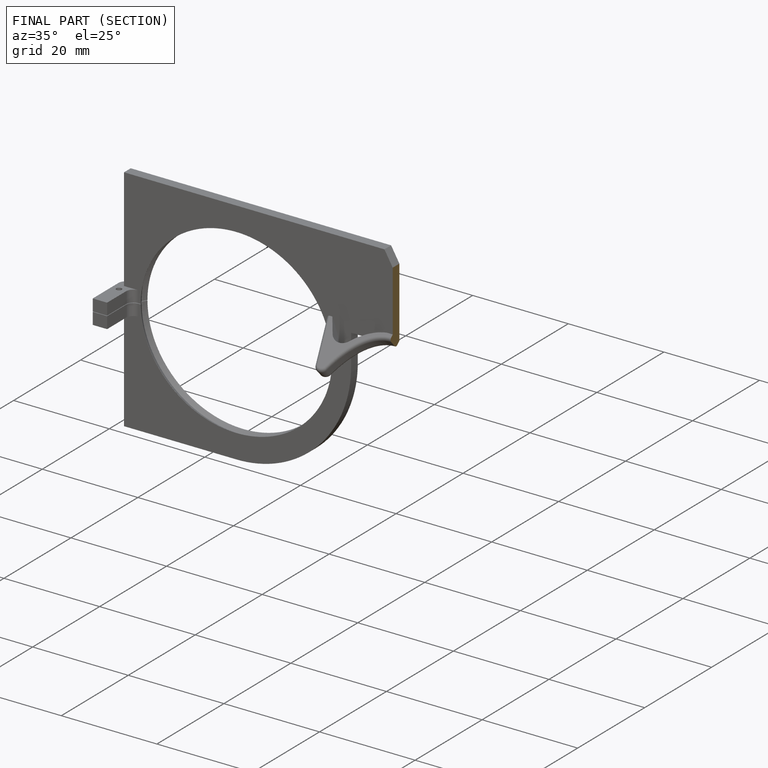
[diagram: finished part — half-section view (interior)]
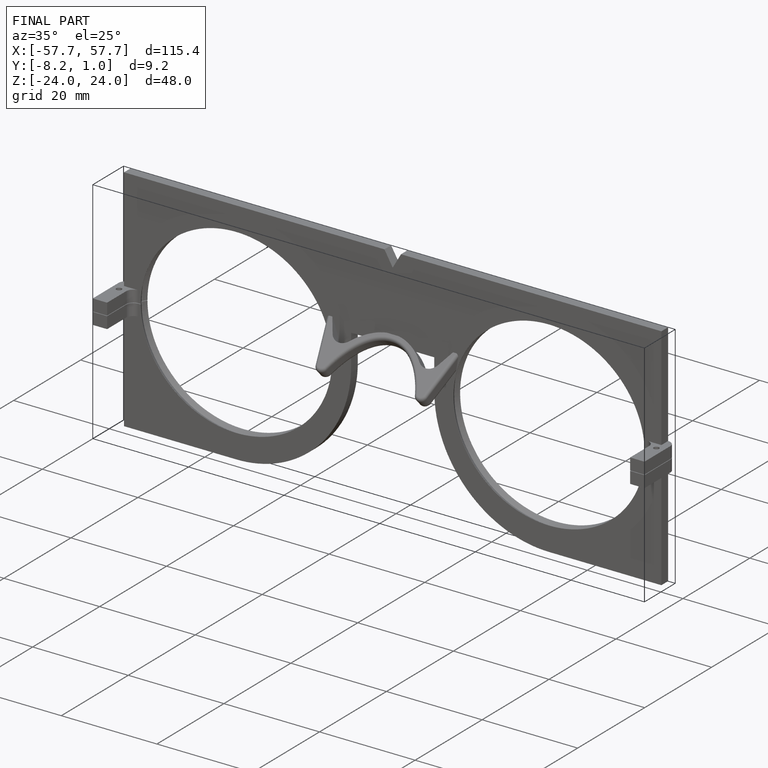
[diagram: finished part — iso view with bounding-box wireframe]
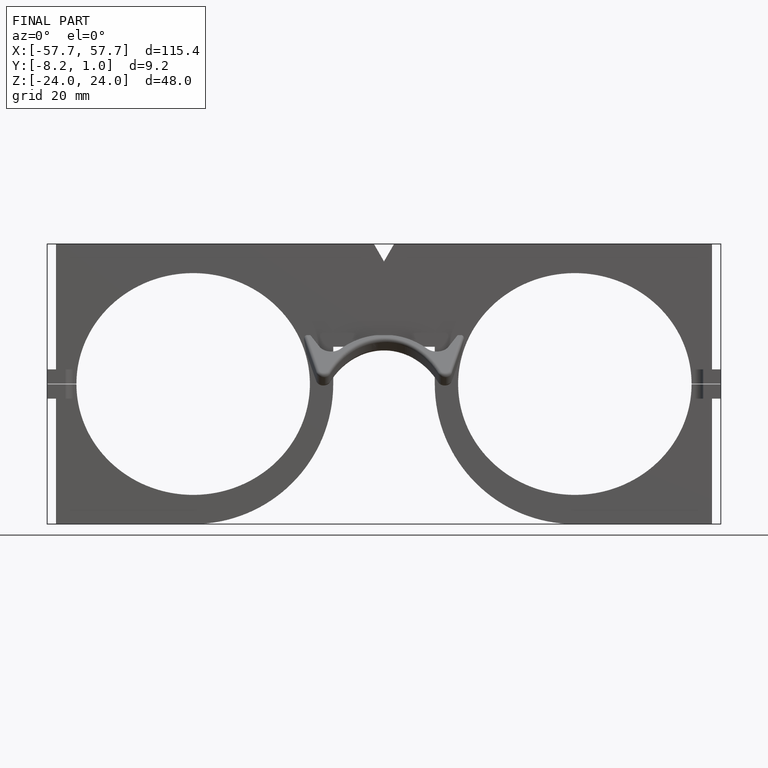
[diagram: finished part — front view with bounding-box wireframe]
